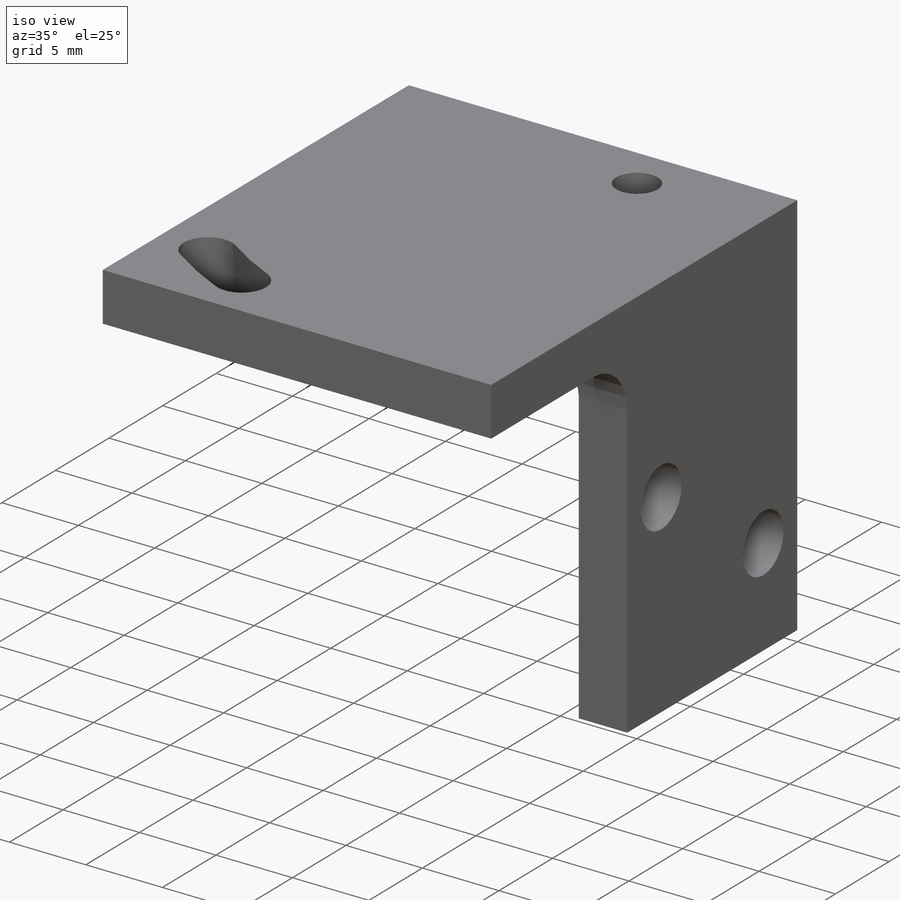
[diagram: iso view]
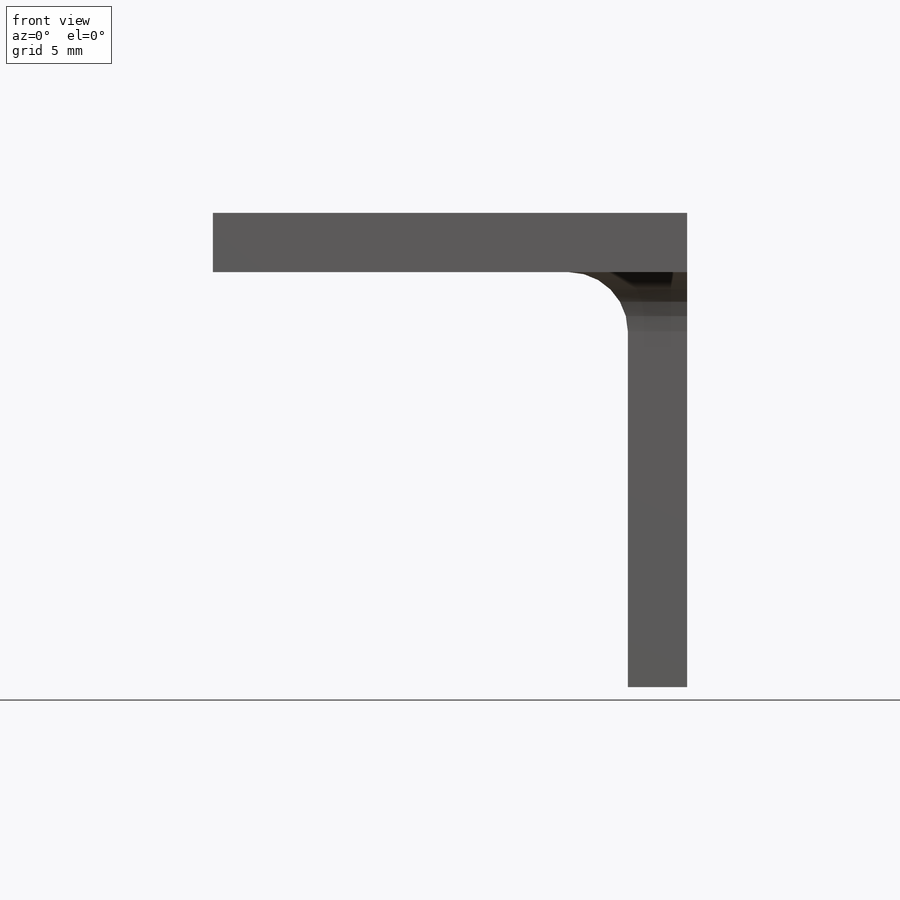
[diagram: front view]
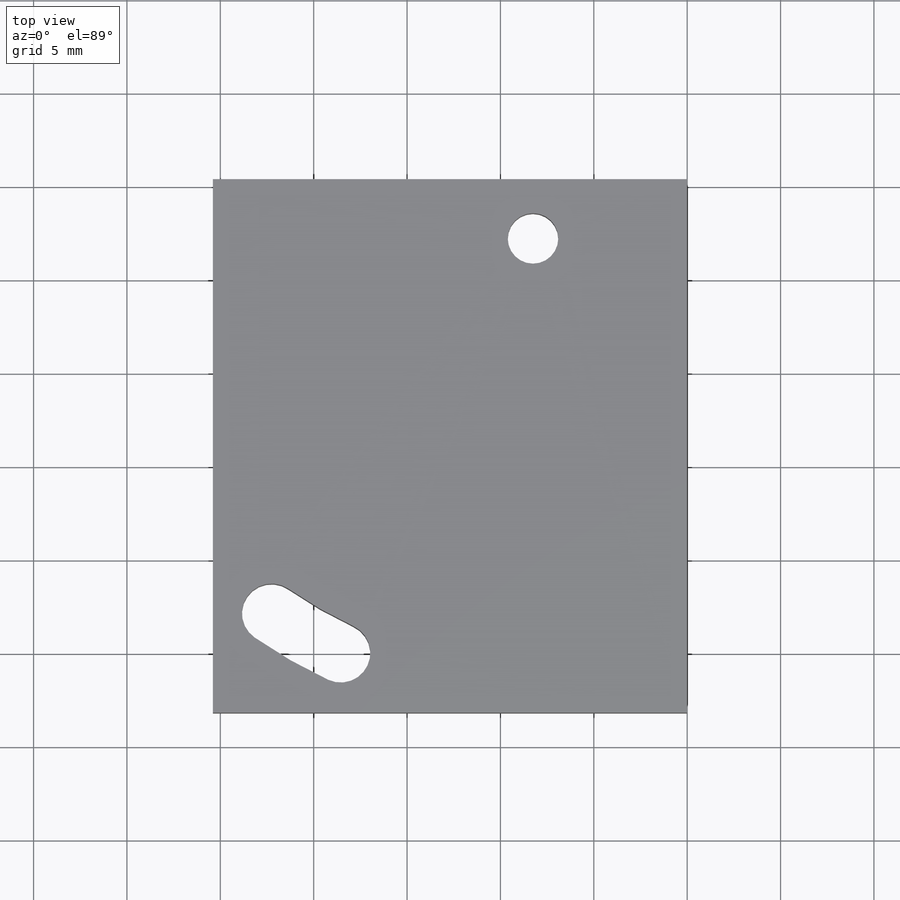
[diagram: top view]
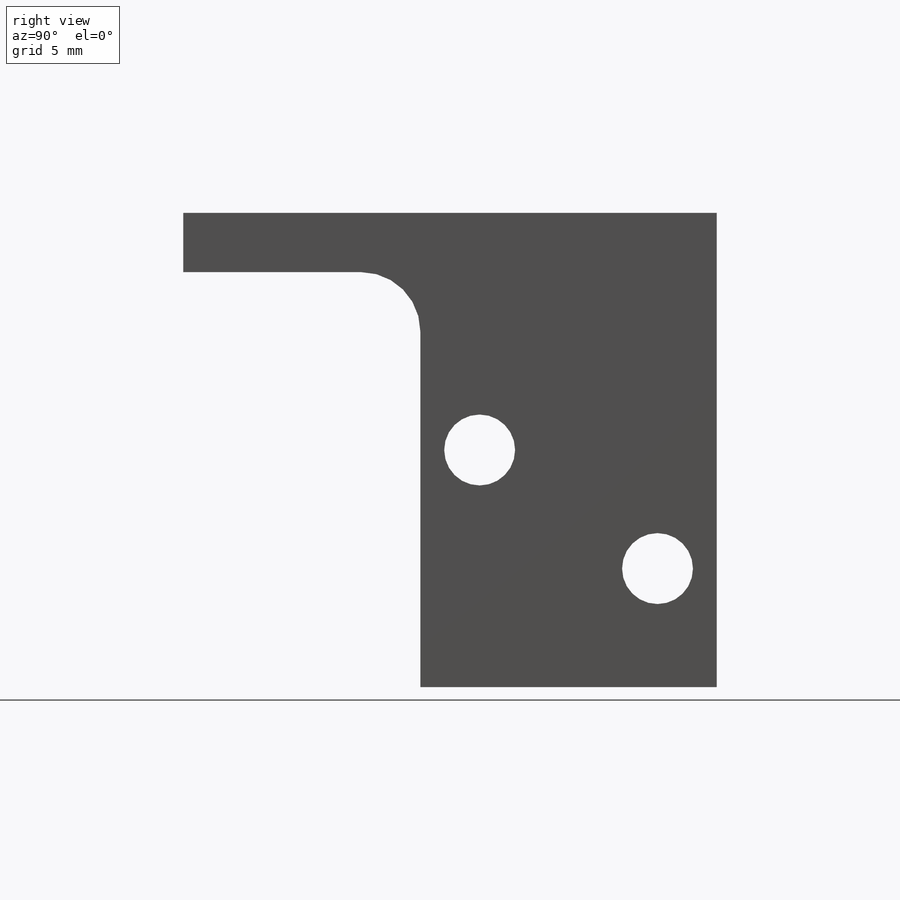
[diagram: right view]
SOLIDWORKS PART (.sldprt)
format: sldprt  version: not decoded by parser v0  size: 291,840 bytes
history: native  units: mm
features: sketch x8, hole x2, thread x2, cut_extrude x2, material x1, extrude x1, fillet x1 (+13 scaffold rows collapsed)
feature tree (30):
  scaffold x13  (default folders/planes/origin — collapsed)
  material  "Material <not specified>"
  sketch  "Sketch1"  dims[D1=3.175mm D2=3.175mm D3=25.4mm D4=25.4mm]
  extrude  "Boss-Extrude1"  Depth=28.575mm
  sketch  "Sketch3"  dims[D1=8.255mm D2=10.3mm D3=3.175mm D4=22.2mm]
  hole  "#6-32 Tapped Hole1"  Diameter=2.7051mm Depth=25.4mm
  sketch  "3DSketch2"
  sketch  "Sketch5"  dims[hole-wizard template sketch: 60 standard entries collapsed; hole parameters kept: c18.Thru Tap Drill Depth=25.4mm]
  thread  "Hole Thread1"  Diameter=3.5052mm  [1 undecoded]
  thread  "Hole Thread2"  Diameter=3.5052mm  [1 undecoded]
  hole  "#6 Clearance Hole1"  Diameter=3.7973mm Depth=3.175mm
  sketch  "3DSketch3"  dims[D1=6.35mm D2=12.7mm D3=3.175mm D4=12.7mm]
  sketch  "Sketch7"  dims[hole-wizard template sketch: 60 standard entries collapsed; hole parameters kept: c18.Thru Hole Depth=3.175mm]
  sketch  "Sketch8"  dims[c1.D1=3.175mm c1.D2=3.175mm c1.D3=~24.473046mm c2.D3=10.0deg c2.D4=~24.473046mm c3.D4=10.0deg]
  cut_extrude  "Cut-Extrude1"  [1 undecoded]
  sketch  "Sketch9"  dims[D1=15.875mm]
  cut_extrude  "Cut-Extrude2"  [1 undecoded]
  fillet  "Fillet1"  Radius=3.175mm
decode coverage: 13 of 16 modeling features carry decoded parameters
note: ~ marks probable driven/reference dimensions
note: 4 parameter values undecoded
note: suppression state not decoded; provenance and decode notes live in map.json
